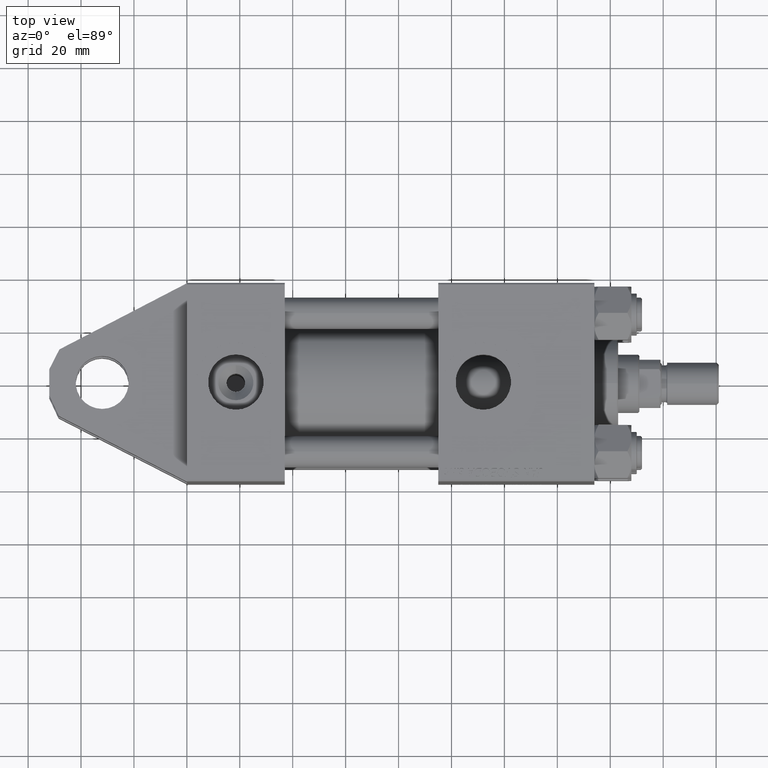
[diagram: clean part render]
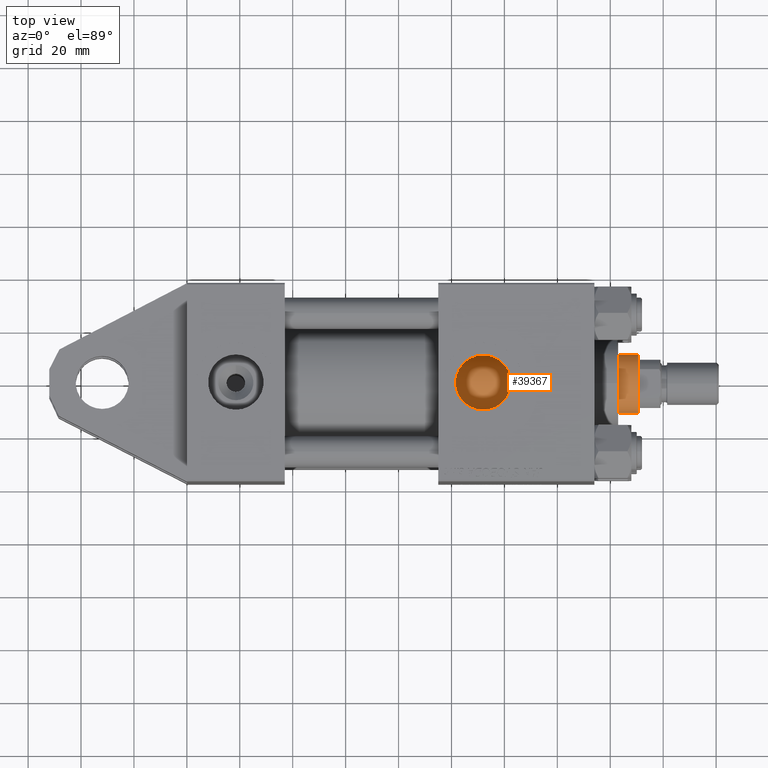
[diagram: same view with one face highlighted and labeled with its STEP entity id]
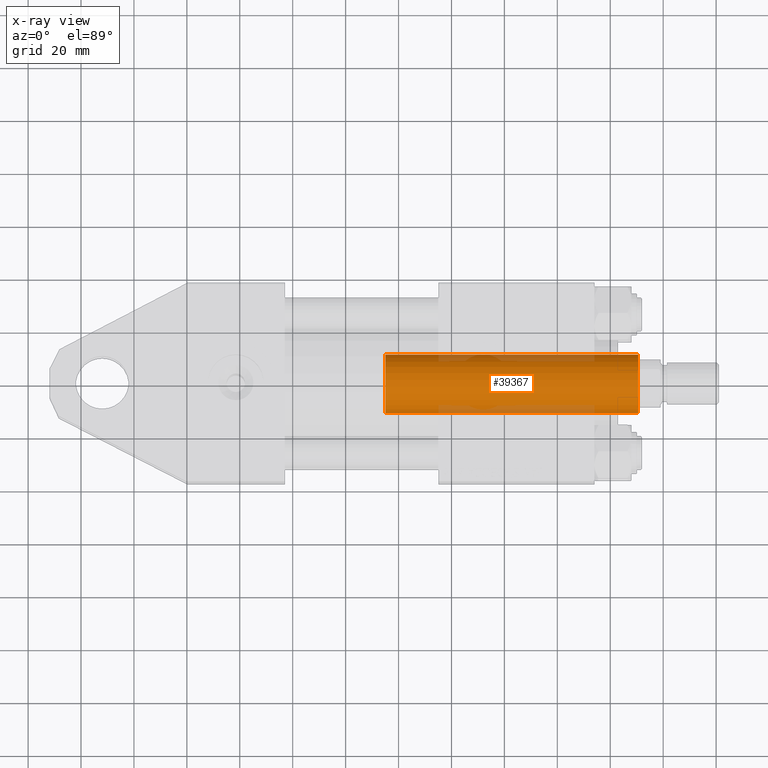
[diagram: x-ray of the same camera — body ghosted, the highlighted face saturated]
A machine part, top view. The second image highlights one B-rep face of the part: STEP entity #39367.
The next image is the same camera in x-ray: the body ghosted, the highlighted face saturated — about 14% of this face is hidden behind the body in this view.
In plain terms, the highlighted cylindrical surface (edge-blend (fillet) strip) has radius 11 mm, axis along (-1, 0, 0).
Its self-contained STEP definition (entity closure, byte-faithful):
#725 = ORIENTED_EDGE ( 'NONE', *, *, #47369, .F. ) ;
#1834 = DIRECTION ( 'NONE',  ( 0.000000000000000000, 0.000000000000000000, -1.000000000000000000 ) ) ;
#2779 = CARTESIAN_POINT ( 'NONE',  ( -11.00000000000000000, 0.000000000000000000, 134.0000000000000000 ) ) ;
#4558 = DIRECTION ( 'NONE',  ( 1.000000000000000000, 0.000000000000000000, 0.000000000000000000 ) ) ;
#4579 = DIRECTION ( 'NONE',  ( -0.000000000000000000, -0.000000000000000000, -1.000000000000000000 ) ) ;
#9746 = EDGE_CURVE ( 'NONE', #43635, #39394, #23264, .T. ) ;
#13224 = AXIS2_PLACEMENT_3D ( 'NONE', #22211, #50678, #50152 ) ;
#13907 = DIRECTION ( 'NONE',  ( -0.000000000000000000, -0.000000000000000000, -1.000000000000000000 ) ) ;
#15694 = AXIS2_PLACEMENT_3D ( 'NONE', #37974, #1834, #4558 ) ;
#16466 = LINE ( 'NONE', #25421, #51890 ) ;
#17274 = EDGE_CURVE ( 'NONE', #39394, #25990, #19406, .T. ) ;
#19135 = CARTESIAN_POINT ( 'NONE',  ( 11.00000000000000000, 1.347111479062088405E-15, 133.5000000000000000 ) ) ;
#19406 = LINE ( 'NONE', #2779, #38681 ) ;
#21473 = ORIENTED_EDGE ( 'NONE', *, *, #49854, .T. ) ;
#22072 = CYLINDRICAL_SURFACE ( 'NONE', #31419, 11.00000000000000000 ) ;
#22211 = CARTESIAN_POINT ( 'NONE',  ( 0.000000000000000000, 0.000000000000000000, 38.00000000000000000 ) ) ;
#23264 = CIRCLE ( 'NONE', #15694, 11.00000000000000000 ) ;
#25140 = CARTESIAN_POINT ( 'NONE',  ( 11.00000000000000000, 1.347111479062088405E-15, 38.00000000000000000 ) ) ;
#25421 = CARTESIAN_POINT ( 'NONE',  ( 11.00000000000000000, 1.347111479062088405E-15, 134.0000000000000000 ) ) ;
#25990 = VERTEX_POINT ( 'NONE', #43298 ) ;
#29996 = CARTESIAN_POINT ( 'NONE',  ( 0.000000000000000000, 0.000000000000000000, 134.0000000000000000 ) ) ;
#30257 = CARTESIAN_POINT ( 'NONE',  ( -11.00000000000000000, 0.000000000000000000, 133.5000000000000000 ) ) ;
#31419 = AXIS2_PLACEMENT_3D ( 'NONE', #29996, #13907, #37636 ) ;
#33712 = ORIENTED_EDGE ( 'NONE', *, *, #17274, .T. ) ;
#37636 = DIRECTION ( 'NONE',  ( -1.000000000000000000, 0.000000000000000000, 0.000000000000000000 ) ) ;
#37974 = CARTESIAN_POINT ( 'NONE',  ( 0.000000000000000000, 0.000000000000000000, 133.5000000000000000 ) ) ;
#38681 = VECTOR ( 'NONE', #43395, 1000.000000000000000 ) ;
#39367 = ADVANCED_FACE ( 'NONE', ( #42634 ), #22072, .T. ) ;
#39394 = VERTEX_POINT ( 'NONE', #30257 ) ;
#39910 = VERTEX_POINT ( 'NONE', #25140 ) ;
#42634 = FACE_OUTER_BOUND ( 'NONE', #44596, .T. ) ;
#43298 = CARTESIAN_POINT ( 'NONE',  ( -11.00000000000000000, 0.000000000000000000, 38.00000000000000000 ) ) ;
#43395 = DIRECTION ( 'NONE',  ( -0.000000000000000000, -0.000000000000000000, -1.000000000000000000 ) ) ;
#43635 = VERTEX_POINT ( 'NONE', #19135 ) ;
#44596 = EDGE_LOOP ( 'NONE', ( #725, #45005, #33712, #21473 ) ) ;
#45005 = ORIENTED_EDGE ( 'NONE', *, *, #9746, .T. ) ;
#47369 = EDGE_CURVE ( 'NONE', #43635, #39910, #16466, .T. ) ;
#49854 = EDGE_CURVE ( 'NONE', #25990, #39910, #51994, .T. ) ;
#50152 = DIRECTION ( 'NONE',  ( 1.000000000000000000, 0.000000000000000000, 0.000000000000000000 ) ) ;
#50678 = DIRECTION ( 'NONE',  ( 0.000000000000000000, 0.000000000000000000, 1.000000000000000000 ) ) ;
#51890 = VECTOR ( 'NONE', #4579, 1000.000000000000000 ) ;
#51994 = CIRCLE ( 'NONE', #13224, 11.00000000000000000 ) ;